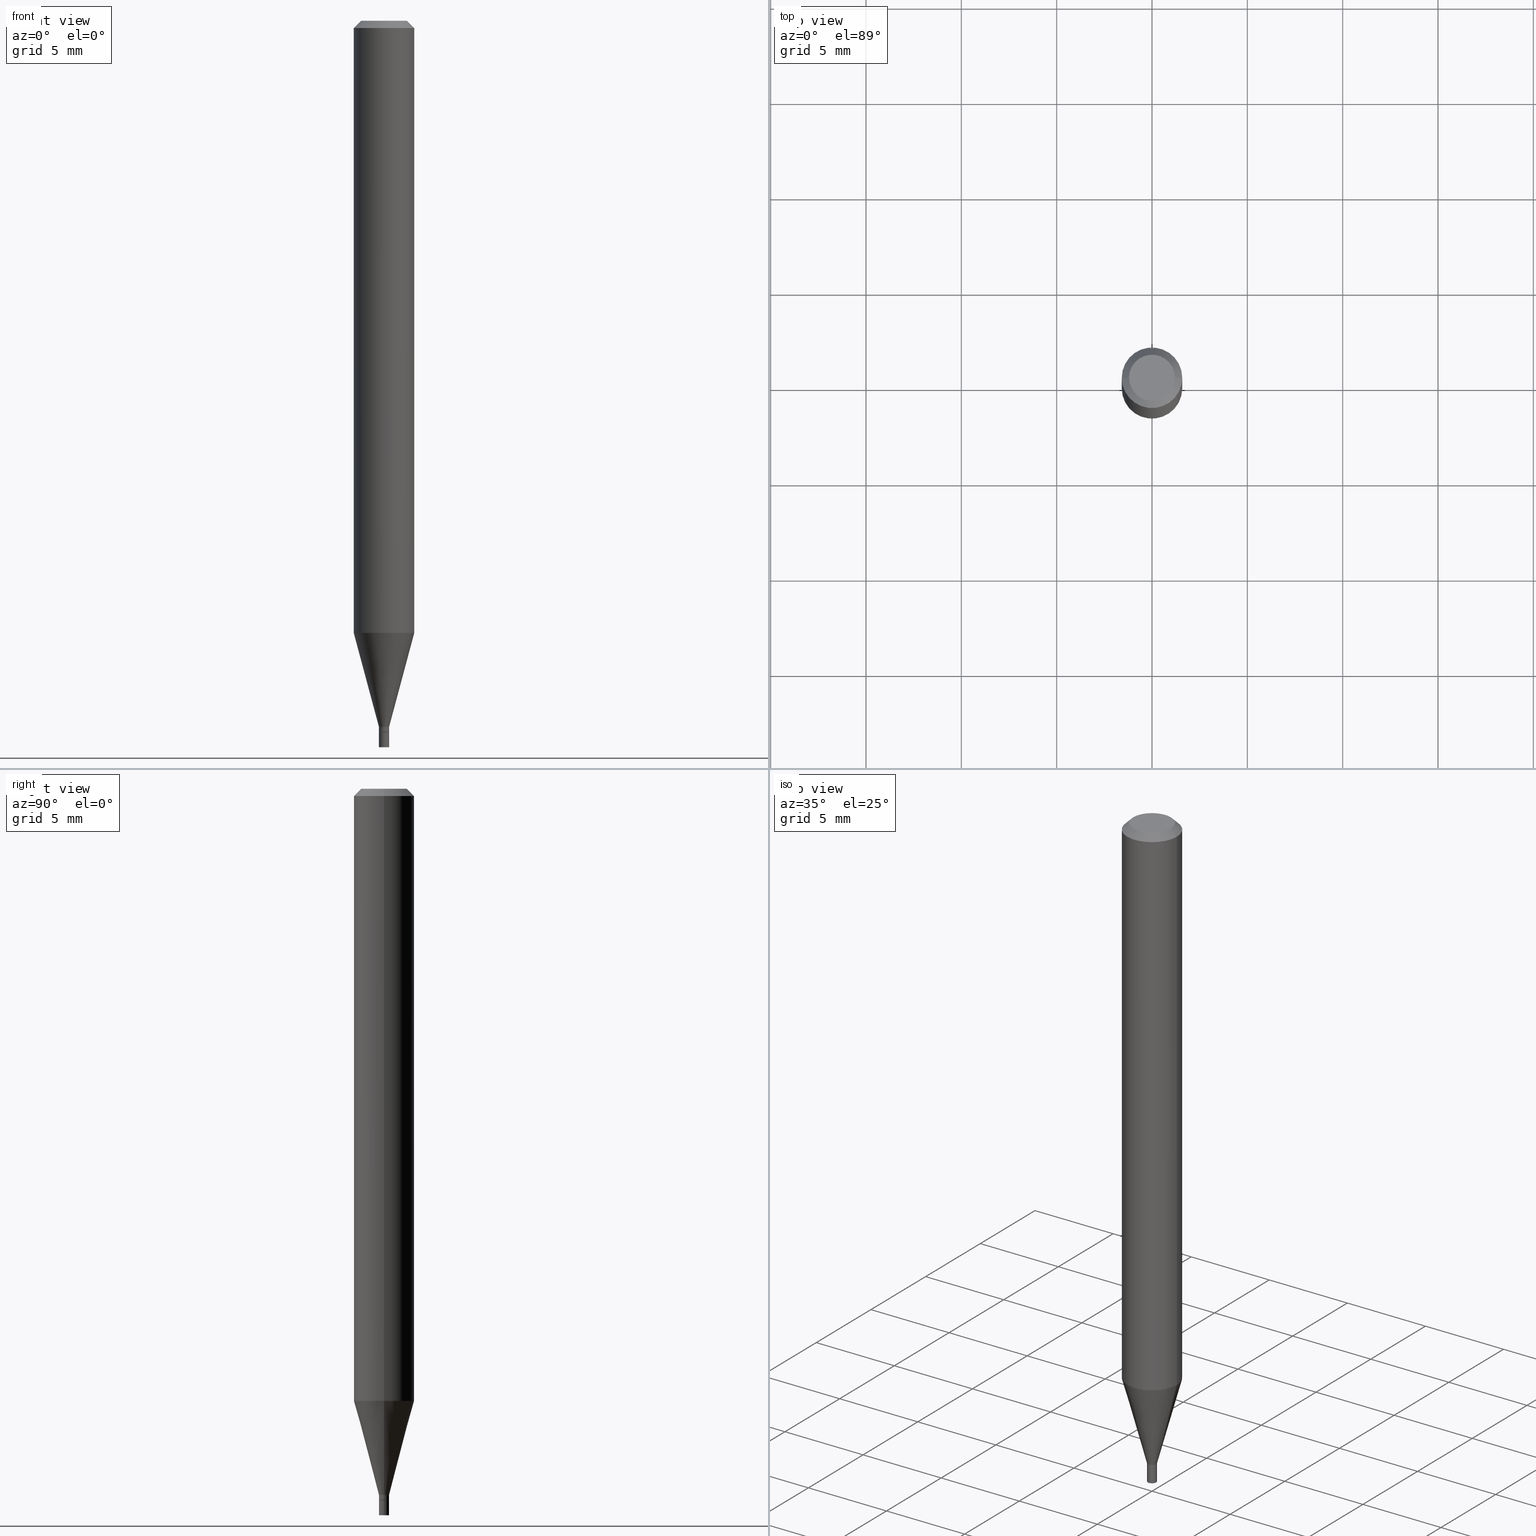
[diagram: canonical four-view strip — front | top / right | iso, engineering-drawing reading convention]
A machine part, canonical four-view strip (front | top / right | iso — engineering-drawing reading convention). The complete STEP part file that produces these views, byte-faithful:
ISO-10303-21;
HEADER;
FILE_DESCRIPTION (( 'STEP AP203' ),
    '1' );
FILE_NAME ('00388.STEP',
    '2024-03-19T21:07:34',
    ( '' ),
    ( '' ),
    'SwSTEP 2.0',
    'SolidWorks 2023',
    '' );
FILE_SCHEMA (( 'CONFIG_CONTROL_DESIGN' ));
ENDSEC;

DATA;
#1 = EDGE_CURVE ( 'NONE', #326, #166, #112, .T. ) ;
#2 = ORIENTED_EDGE ( 'NONE', *, *, #208, .T. ) ;
#3 = LINE ( 'NONE', #438, #330 ) ;
#4 = EDGE_CURVE ( 'NONE', #338, #343, #61, .T. ) ;
#5 = ORIENTED_EDGE ( 'NONE', *, *, #453, .F. ) ;
#6 = CIRCLE ( 'NONE', #132, 0.01050000000000000239 ) ;
#7 = AXIS2_PLACEMENT_3D ( 'NONE', #324, #396, #284 ) ;
#8 = ORIENTED_EDGE ( 'NONE', *, *, #328, .T. ) ;
#9 = APPROVAL_PERSON_ORGANIZATION ( #366, #71, #35 ) ;
#10 = CARTESIAN_POINT ( 'NONE',  ( 0.06250000000000000000, -4.849434900376155208E-15, -1.263933358006418706 ) ) ;
#12 = ORIENTED_EDGE ( 'NONE', *, *, #328, .F. ) ;
#11 = COORDINATED_UNIVERSAL_TIME_OFFSET ( 5, 0, .BEHIND. ) ;
#13 = CARTESIAN_POINT ( 'NONE',  ( 3.316907271900976096E-16, 0.04749999999999999362, -3.263246605298391118E-16 ) ) ;
#14 = ORIENTED_EDGE ( 'NONE', *, *, #246, .F. ) ;
#15 = DIRECTION ( 'NONE',  ( -2.445468806185136877E-29, 3.491481338843145188E-15, 1.000000000000000000 ) ) ;
#16 = VERTEX_POINT ( 'NONE', #358 ) ;
#17 = DIRECTION ( 'NONE',  ( -2.445468806185136597E-29, 3.491481338843145583E-15, 1.000000000000000000 ) ) ;
#18 = VERTEX_POINT ( 'NONE', #429 ) ;
#19 = CARTESIAN_POINT ( 'NONE',  ( 0.000000000000000000, 0.000000000000000000, 0.000000000000000000 ) ) ;
#20 = CIRCLE ( 'NONE', #227, 0.06250000000000000000 ) ;
#21 = EDGE_LOOP ( 'NONE', ( #198, #248 ) ) ;
#22 = DIRECTION ( 'NONE',  ( 2.445468806185136597E-29, -3.491481338843145583E-15, -1.000000000000000000 ) ) ;
#23 = UNCERTAINTY_MEASURE_WITH_UNIT (LENGTH_MEASURE( 1.000000000000000082E-05 ), #201, 'distance_accuracy_value', 'NONE');
#24 = EDGE_CURVE ( 'NONE', #193, #128, #249, .T. ) ;
#25 = DIRECTION ( 'NONE',  ( 1.000000000000000000, -6.982962677686243834E-15, 0.000000000000000000 ) ) ;
#26 = AXIS2_PLACEMENT_3D ( 'NONE', #422, #268, #104 ) ;
#27 = ORIENTED_EDGE ( 'NONE', *, *, #320, .F. ) ;
#28 = CARTESIAN_POINT ( 'NONE',  ( -0.01000000000000000194, -5.054440331845727922E-15, -1.467999999999999972 ) ) ;
#29 = DIRECTION ( 'NONE',  ( -2.445468806185136597E-29, 3.491481338843145583E-15, 1.000000000000000000 ) ) ;
#30 = PERSON_AND_ORGANIZATION_ROLE ( 'creator' ) ;
#31 = PERSON ( 'UNSPECIFIED', 'UNSPECIFIED', 'UNSPECIFIED', ('UNSPECIFIED'), ('UNSPECIFIED'), ('UNSPECIFIED') ) ;
#32 = ADVANCED_FACE ( 'NONE', ( #175 ), #394, .T. ) ;
#33 = VECTOR ( 'NONE', #15, 39.37007874015748143 ) ;
#34 = VECTOR ( 'NONE', #164, 39.37007874015748143 ) ;
#35 = APPROVAL_ROLE ( '' ) ;
#36 = ADVANCED_FACE ( 'NONE', ( #355 ), #172, .T. ) ;
#37 = CARTESIAN_POINT ( 'NONE',  ( 0.000000000000000000, 0.000000000000000000, 0.000000000000000000 ) ) ;
#38 = ORIENTED_EDGE ( 'NONE', *, *, #238, .T. ) ;
#39 = CARTESIAN_POINT ( 'NONE',  ( 3.565493519417929750E-29, -5.090579792033306355E-15, -1.458000000000000185 ) ) ;
#40 = ORIENTED_EDGE ( 'NONE', *, *, #167, .F. ) ;
#41 = AXIS2_PLACEMENT_3D ( 'NONE', #283, #213, #44 ) ;
#42 = CC_DESIGN_APPROVAL ( #310, ( #323 ) ) ;
#43 = ORIENTED_EDGE ( 'NONE', *, *, #320, .T. ) ;
#44 = DIRECTION ( 'NONE',  ( 1.000000000000000000, -6.982962677686265922E-15, 4.876176775795935232E-29 ) ) ;
#45 = ORIENTED_EDGE ( 'NONE', *, *, #162, .F. ) ;
#46 = ORIENTED_EDGE ( 'NONE', *, *, #4, .F. ) ;
#47 = DIRECTION ( 'NONE',  ( 0.7071067811865642261, -2.468850131082431399E-15, 0.7071067811865309194 ) ) ;
#48 = DIRECTION ( 'NONE',  ( -2.445468806185136877E-29, 3.491481338843145188E-15, 1.000000000000000000 ) ) ;
#49 = VECTOR ( 'NONE', #91, 39.37007874015747433 ) ;
#51 = ORIENTED_EDGE ( 'NONE', *, *, #126, .F. ) ;
#50 = PERSON_AND_ORGANIZATION ( #31, #327 ) ;
#52 = MANIFOLD_SOLID_BREP ( 'Body-Move/Copy2[1]', #380 ) ;
#53 = DIRECTION ( 'NONE',  ( -2.445468806185136597E-29, 3.491481338843145583E-15, 1.000000000000000000 ) ) ;
#54 = MANIFOLD_SOLID_BREP ( 'Body-Move/Copy2[2]', #317 ) ;
#55 = DIRECTION ( 'NONE',  ( -2.445468806185136597E-29, 3.491481338843145583E-15, 1.000000000000000000 ) ) ;
#56 = ORIENTED_EDGE ( 'NONE', *, *, #241, .F. ) ;
#57 = EDGE_CURVE ( 'NONE', #166, #326, #242, .T. ) ;
#58 = DIRECTION ( 'NONE',  ( -2.445468806185136597E-29, 3.491481338843145583E-15, 1.000000000000000000 ) ) ;
#59 = EDGE_LOOP ( 'NONE', ( #229, #121 ) ) ;
#60 = EDGE_CURVE ( 'NONE', #83, #18, #225, .T. ) ;
#61 = CIRCLE ( 'NONE', #340, 0.01050000000000000239 ) ;
#62 = AXIS2_PLACEMENT_3D ( 'NONE', #428, #348, #214 ) ;
#63 = LENGTH_MEASURE_WITH_UNIT ( LENGTH_MEASURE( 0.02539999999999999897 ), #135 );
#64 = DIRECTION ( 'NONE',  ( 1.000000000000000000, -6.982962677686266711E-15, 4.876176775795935793E-29 ) ) ;
#65 = ADVANCED_BREP_SHAPE_REPRESENTATION ( '00388', ( #52, #54, #139 ), #266 ) ;
#66 = CARTESIAN_POINT ( 'NONE',  ( 3.589948207479780735E-29, -5.125494605421738004E-15, -1.467999999999999972 ) ) ;
#67 = CYLINDRICAL_SURFACE ( 'NONE', #41, 0.01050000000000000239 ) ;
#68 = EDGE_LOOP ( 'NONE', ( #252, #259, #46, #228 ) ) ;
#69 = AXIS2_PLACEMENT_3D ( 'NONE', #373, #58, #202 ) ;
#70 = LOCAL_TIME ( 17, 7, 34.00000000000000000, #11 ) ;
#71 = APPROVAL ( #144, 'UNSPECIFIED' ) ;
#72 = PERSON_AND_ORGANIZATION_ROLE ( 'classification_officer' ) ;
#73 = DIRECTION ( 'NONE',  ( 0.2588190451025214611, 1.565188264969621573E-15, 0.9659258262890682012 ) ) ;
#74 = ADVANCED_FACE ( 'NONE', ( #177 ), #67, .T. ) ;
#75 = CARTESIAN_POINT ( 'NONE',  ( -0.01049999999999992432, -5.049141877497507098E-15, -1.467500000000000027 ) ) ;
#76 = AXIS2_PLACEMENT_3D ( 'NONE', #286, #79, #220 ) ;
#77 = CYLINDRICAL_SURFACE ( 'NONE', #405, 0.06250000000000000000 ) ;
#78 = ADVANCED_FACE ( 'NONE', ( #337 ), #89, .T. ) ;
#79 = DIRECTION ( 'NONE',  ( -2.445468806185136597E-29, 3.491481338843145583E-15, 1.000000000000000000 ) ) ;
#80 = ORIENTED_EDGE ( 'NONE', *, *, #246, .T. ) ;
#81 = APPLICATION_CONTEXT ( 'configuration controlled 3d designs of mechanical parts and assemblies' ) ;
#82 = FACE_OUTER_BOUND ( 'NONE', #307, .T. ) ;
#83 = VERTEX_POINT ( 'NONE', #75 ) ;
#84 = DIRECTION ( 'NONE',  ( 1.000000000000000000, -6.982962677686243834E-15, 0.000000000000000000 ) ) ;
#85 = AXIS2_PLACEMENT_3D ( 'NONE', #361, #105, #25 ) ;
#86 = ADVANCED_FACE ( 'NONE', ( #179 ), #329, .F. ) ;
#87 = ORIENTED_EDGE ( 'NONE', *, *, #424, .T. ) ;
#88 = EDGE_LOOP ( 'NONE', ( #333, #410, #125, #463 ) ) ;
#89 = CYLINDRICAL_SURFACE ( 'NONE', #265, 0.01049999999999992432 ) ;
#90 = VERTEX_POINT ( 'NONE', #141 ) ;
#91 = DIRECTION ( 'NONE',  ( -0.2588190451025214611, 5.211531920934551042E-15, 0.9659258262890682012 ) ) ;
#92 = CARTESIAN_POINT ( 'NONE',  ( -0.01050000000000000239, -5.106751319588416716E-15, -1.500000000000000222 ) ) ;
#93 = CARTESIAN_POINT ( 'NONE',  ( 3.565493519417929750E-29, -5.090579792033306355E-15, -1.458000000000000185 ) ) ;
#94 = CC_DESIGN_PERSON_AND_ORGANIZATION_ASSIGNMENT ( #183, #399, ( #157 ) ) ;
#95 = DIRECTION ( 'NONE',  ( -2.445468806185136597E-29, 3.491481338843145583E-15, 1.000000000000000000 ) ) ;
#96 = DIRECTION ( 'NONE',  ( -1.000000000000000000, 6.982962677686266711E-15, 0.000000000000000000 ) ) ;
#97 = CIRCLE ( 'NONE', #26, 0.06250000000000000000 ) ;
#98 = PLANE ( 'NONE',  #148 ) ;
#99 = CARTESIAN_POINT ( 'NONE',  ( -0.04749999999999999362, 3.578768372314205575E-16, -3.209585938695818960E-16 ) ) ;
#100 = CARTESIAN_POINT ( 'NONE',  ( 3.589948207479780735E-29, -5.125494605421738004E-15, -1.467999999999999972 ) ) ;
#101 = APPLICATION_PROTOCOL_DEFINITION ( 'international standard', 'config_control_design', 1994, #115 ) ;
#102 = EDGE_CURVE ( 'NONE', #166, #83, #210, .T. ) ;
#103 = CARTESIAN_POINT ( 'NONE',  ( -0.01000000000000000194, -5.051791104671617510E-15, -1.467999999999999972 ) ) ;
#104 = DIRECTION ( 'NONE',  ( 1.000000000000000000, -6.982962677686262766E-15, 0.000000000000000000 ) ) ;
#105 = DIRECTION ( 'NONE',  ( -2.445468806185136597E-29, 3.491481338843145583E-15, 1.000000000000000000 ) ) ;
#106 = CC_DESIGN_APPROVAL ( #173, ( #157 ) ) ;
#107 = DATE_AND_TIME ( #392, #275 ) ;
#108 = CARTESIAN_POINT ( 'NONE',  ( 0.000000000000000000, 0.000000000000000000, 0.000000000000000000 ) ) ;
#109 = FACE_OUTER_BOUND ( 'NONE', #219, .T. ) ;
#110 = DIRECTION ( 'NONE',  ( -2.445468806185136877E-29, 3.491481338843145188E-15, 1.000000000000000000 ) ) ;
#111 = ORIENTED_EDGE ( 'NONE', *, *, #24, .F. ) ;
#112 = CIRCLE ( 'NONE', #371, 0.01000000000000000194 ) ;
#113 = SECURITY_CLASSIFICATION_LEVEL ( 'unclassified' ) ;
#114 = EDGE_CURVE ( 'NONE', #168, #343, #321, .T. ) ;
#115 = APPLICATION_CONTEXT ( 'configuration controlled 3d designs of mechanical parts and assemblies' ) ;
#116 = DIRECTION ( 'NONE',  ( 1.000000000000000000, -6.982962677686265922E-15, 4.876176775795935793E-29 ) ) ;
#117 = AXIS2_PLACEMENT_3D ( 'NONE', #446, #122, #382 ) ;
#118 = ORIENTED_EDGE ( 'NONE', *, *, #336, .F. ) ;
#119 = AXIS2_PLACEMENT_3D ( 'NONE', #39, #444, #84 ) ;
#120 = EDGE_LOOP ( 'NONE', ( #305, #80, #51, #5 ) ) ;
#121 = ORIENTED_EDGE ( 'NONE', *, *, #57, .F. ) ;
#122 = DIRECTION ( 'NONE',  ( -2.445468806185136597E-29, 3.491481338843145583E-15, 1.000000000000000000 ) ) ;
#123 = ADVANCED_FACE ( 'NONE', ( #401 ), #301, .T. ) ;
#124 = CARTESIAN_POINT ( 'NONE',  ( 0.01050000000000000239, -7.332110811570581229E-17, 5.119985614585733248E-31 ) ) ;
#125 = ORIENTED_EDGE ( 'NONE', *, *, #332, .F. ) ;
#126 = EDGE_CURVE ( 'NONE', #16, #415, #460, .T. ) ;
#128 = VERTEX_POINT ( 'NONE', #99 ) ;
#127 = PERSON_AND_ORGANIZATION ( #31, #327 ) ;
#129 = FACE_OUTER_BOUND ( 'NONE', #160, .T. ) ;
#130 = CARTESIAN_POINT ( 'NONE',  ( -0.01049999999999992432, 7.460698725480998181E-17, -5.164881844767614889E-31 ) ) ;
#131 = ORIENTED_EDGE ( 'NONE', *, *, #208, .F. ) ;
#132 = AXIS2_PLACEMENT_3D ( 'NONE', #194, #152, #341 ) ;
#133 = DIRECTION ( 'NONE',  ( 0.000000000000000000, 0.000000000000000000, 1.000000000000000000 ) ) ;
#134 = LOCAL_TIME ( 17, 7, 34.00000000000000000, #385 ) ;
#135 =( LENGTH_UNIT ( ) NAMED_UNIT ( * ) SI_UNIT ( $, .METRE. ) );
#136 = CARTESIAN_POINT ( 'NONE',  ( 3.668203209277704895E-29, -5.237222008264718177E-15, -1.500000000000000222 ) ) ;
#137 = ORIENTED_EDGE ( 'NONE', *, *, #364, .F. ) ;
#138 = AXIS2_PLACEMENT_3D ( 'NONE', #37, #247, #294 ) ;
#139 = AXIS2_PLACEMENT_3D ( 'NONE', #452, #133, #269 ) ;
#140 = CARTESIAN_POINT ( 'NONE',  ( -0.01050000000000000239, 7.460698725481053648E-17, -5.164881844767652549E-31 ) ) ;
#141 = CARTESIAN_POINT ( 'NONE',  ( -0.06250000000000000000, -1.788596766701642890E-15, -0.01499999999999999944 ) ) ;
#142 = AXIS2_PLACEMENT_3D ( 'NONE', #288, #182, #116 ) ;
#143 = AXIS2_PLACEMENT_3D ( 'NONE', #136, #55, #270 ) ;
#144 = APPROVAL_STATUS ( 'not_yet_approved' ) ;
#145 = FACE_OUTER_BOUND ( 'NONE', #425, .T. ) ;
#146 = CARTESIAN_POINT ( 'NONE',  ( 3.565493519417929750E-29, -5.090579792033306355E-15, -1.458000000000000185 ) ) ;
#147 = ORIENTED_EDGE ( 'NONE', *, *, #57, .T. ) ;
#148 = AXIS2_PLACEMENT_3D ( 'NONE', #237, #235, #388 ) ;
#149 = LOCAL_TIME ( 17, 7, 34.00000000000000000, #176 ) ;
#150 = ORIENTED_EDGE ( 'NONE', *, *, #180, .F. ) ;
#151 = DIRECTION ( 'NONE',  ( -2.445468806185136597E-29, 3.491481338843145583E-15, 1.000000000000000000 ) ) ;
#152 = DIRECTION ( 'NONE',  ( -2.445468806185136597E-29, 3.491481338843145583E-15, 1.000000000000000000 ) ) ;
#153 = CC_DESIGN_PERSON_AND_ORGANIZATION_ASSIGNMENT ( #50, #342, ( #323 ) ) ;
#154 = DIRECTION ( 'NONE',  ( -2.445468806185136597E-29, 3.491481338843145583E-15, 1.000000000000000000 ) ) ;
#155 = CONICAL_SURFACE ( 'NONE', #367, 0.06250000000000000000, 0.7853981633974590482 ) ;
#156 = CARTESIAN_POINT ( 'NONE',  ( 3.588725473076687933E-29, -5.123748864752316500E-15, -1.467500000000000027 ) ) ;
#157 = PRODUCT_DEFINITION_FORMATION_WITH_SPECIFIED_SOURCE ( 'ANY', '', #350, .NOT_KNOWN. ) ;
#158 = EDGE_LOOP ( 'NONE', ( #360, #87, #302, #263 ) ) ;
#160 = EDGE_LOOP ( 'NONE', ( #185, #38, #293, #12 ) ) ;
#159 =( NAMED_UNIT ( * ) PLANE_ANGLE_UNIT ( ) SI_UNIT ( $, .RADIAN. ) );
#161 = DIRECTION ( 'NONE',  ( 1.000000000000000000, -6.982962677686284854E-15, 0.000000000000000000 ) ) ;
#162 = EDGE_CURVE ( 'NONE', #18, #83, #432, .T. ) ;
#163 = AXIS2_PLACEMENT_3D ( 'NONE', #108, #395, #64 ) ;
#164 = DIRECTION ( 'NONE',  ( -2.445468806185136877E-29, 3.491481338843145188E-15, 1.000000000000000000 ) ) ;
#165 = LOCAL_TIME ( 17, 7, 34.00000000000000000, #403 ) ;
#166 = VERTEX_POINT ( 'NONE', #103 ) ;
#167 = EDGE_CURVE ( 'NONE', #326, #18, #200, .T. ) ;
#168 = VERTEX_POINT ( 'NONE', #92 ) ;
#169 = DIRECTION ( 'NONE',  ( 1.000000000000000000, -6.982962677686267499E-15, 4.852736867747366768E-29 ) ) ;
#170 = DIRECTION ( 'NONE',  ( -2.445468806185136597E-29, 3.491481338843145583E-15, 1.000000000000000000 ) ) ;
#171 = CIRCLE ( 'NONE', #117, 0.04749999999999999362 ) ;
#172 = CYLINDRICAL_SURFACE ( 'NONE', #181, 0.01049999999999992432 ) ;
#173 = APPROVAL ( #264, 'UNSPECIFIED' ) ;
#174 = DIRECTION ( 'NONE',  ( -0.7071067811865642261, 7.493145998870414114E-15, 0.7071067811865309194 ) ) ;
#175 = FACE_OUTER_BOUND ( 'NONE', #413, .T. ) ;
#176 = COORDINATED_UNIVERSAL_TIME_OFFSET ( 5, 0, .BEHIND. ) ;
#177 = FACE_OUTER_BOUND ( 'NONE', #68, .T. ) ;
#178 = FACE_OUTER_BOUND ( 'NONE', #88, .T. ) ;
#179 = FACE_OUTER_BOUND ( 'NONE', #59, .T. ) ;
#180 = EDGE_CURVE ( 'NONE', #335, #90, #383, .T. ) ;
#181 = AXIS2_PLACEMENT_3D ( 'NONE', #319, #464, #402 ) ;
#182 = DIRECTION ( 'NONE',  ( -2.438088387897960049E-29, 3.491481338843145188E-15, 1.000000000000000000 ) ) ;
#183 = PERSON_AND_ORGANIZATION ( #31, #327 ) ;
#184 = ORIENTED_EDGE ( 'NONE', *, *, #287, .T. ) ;
#185 = ORIENTED_EDGE ( 'NONE', *, *, #126, .T. ) ;
#186 = DIRECTION ( 'NONE',  ( 1.000000000000000000, -6.982962677686266711E-15, 0.000000000000000000 ) ) ;
#187 = CARTESIAN_POINT ( 'NONE',  ( 0.000000000000000000, 0.000000000000000000, 0.000000000000000000 ) ) ;
#188 = EDGE_CURVE ( 'NONE', #343, #338, #298, .T. ) ;
#189 = VERTEX_POINT ( 'NONE', #314 ) ;
#190 = ORIENTED_EDGE ( 'NONE', *, *, #24, .T. ) ;
#191 = ADVANCED_FACE ( 'NONE', ( #109 ), #253, .T. ) ;
#192 = LINE ( 'NONE', #124, #419 ) ;
#193 = VERTEX_POINT ( 'NONE', #414 ) ;
#194 = CARTESIAN_POINT ( 'NONE',  ( 3.668203209277704895E-29, -5.237222008264718177E-15, -1.500000000000000222 ) ) ;
#195 = SECURITY_CLASSIFICATION ( '', '', #113 ) ;
#196 = CARTESIAN_POINT ( 'NONE',  ( 3.589948207479780735E-29, -5.125494605421738004E-15, -1.467999999999999972 ) ) ;
#198 = ORIENTED_EDGE ( 'NONE', *, *, #4, .T. ) ;
#197 = PERSON_AND_ORGANIZATION ( #31, #327 ) ;
#199 = FACE_OUTER_BOUND ( 'NONE', #21, .T. ) ;
#200 = LINE ( 'NONE', #375, #356 ) ;
#201 =( CONVERSION_BASED_UNIT ( 'INCH', #63 ) LENGTH_UNIT ( ) NAMED_UNIT ( #217 ) );
#202 = DIRECTION ( 'NONE',  ( 1.000000000000000000, -6.982962677686235156E-15, 0.000000000000000000 ) ) ;
#203 = DIRECTION ( 'NONE',  ( -2.445468806185136597E-29, 3.491481338843145583E-15, 1.000000000000000000 ) ) ;
#204 = CIRCLE ( 'NONE', #232, 0.06250000000000000000 ) ;
#205 = APPROVAL_PERSON_ORGANIZATION ( #276, #310, #459 ) ;
#206 = DIRECTION ( 'NONE',  ( -2.445468806185136597E-29, 3.491481338843145583E-15, 1.000000000000000000 ) ) ;
#207 = FACE_OUTER_BOUND ( 'NONE', #369, .T. ) ;
#208 = EDGE_CURVE ( 'NONE', #128, #193, #171, .T. ) ;
#209 = CARTESIAN_POINT ( 'NONE',  ( 3.668203209277705088E-31, -5.237222008264718399E-17, -0.01499999999999999944 ) ) ;
#210 = LINE ( 'NONE', #28, #411 ) ;
#211 = DATE_TIME_ROLE ( 'classification_date' ) ;
#212 = CONICAL_SURFACE ( 'NONE', #119, 0.01049999999999992432, 0.2617993877991501295 ) ;
#213 = DIRECTION ( 'NONE',  ( -2.445468806185136597E-29, 3.491481338843145583E-15, 1.000000000000000000 ) ) ;
#214 = DIRECTION ( 'NONE',  ( 1.000000000000000000, -6.982962677686243834E-15, 0.000000000000000000 ) ) ;
#215 = CARTESIAN_POINT ( 'NONE',  ( 3.668203209277705088E-31, -5.237222008264718399E-17, -0.01499999999999999944 ) ) ;
#216 = PERSON_AND_ORGANIZATION ( #31, #327 ) ;
#217 = DIMENSIONAL_EXPONENTS ( 1.000000000000000000, 0.000000000000000000, 0.000000000000000000, 0.000000000000000000, 0.000000000000000000, 0.000000000000000000, 0.000000000000000000 ) ;
#218 = CC_DESIGN_APPROVAL ( #71, ( #195 ) ) ;
#219 = EDGE_LOOP ( 'NONE', ( #416, #147, #447, #374 ) ) ;
#220 = DIRECTION ( 'NONE',  ( 1.000000000000000000, -6.982962677686235156E-15, 0.000000000000000000 ) ) ;
#221 = DIRECTION ( 'NONE',  ( 2.445468806185136597E-29, -3.491481338843145583E-15, -1.000000000000000000 ) ) ;
#222 = PLANE ( 'NONE',  #142 ) ;
#223 = VERTEX_POINT ( 'NONE', #10 ) ;
#224 = LINE ( 'NONE', #260, #390 ) ;
#225 = CIRCLE ( 'NONE', #85, 0.01049999999999992432 ) ;
#226 = CARTESIAN_POINT ( 'NONE',  ( -0.01049999999999992432, -5.015972804778496164E-15, -1.458000000000000185 ) ) ;
#227 = AXIS2_PLACEMENT_3D ( 'NONE', #231, #53, #309 ) ;
#228 = ORIENTED_EDGE ( 'NONE', *, *, #365, .F. ) ;
#229 = ORIENTED_EDGE ( 'NONE', *, *, #1, .F. ) ;
#230 = ORIENTED_EDGE ( 'NONE', *, *, #424, .F. ) ;
#231 = CARTESIAN_POINT ( 'NONE',  ( 3.090909600101528156E-29, -4.412999733020764327E-15, -1.263933358006418706 ) ) ;
#232 = AXIS2_PLACEMENT_3D ( 'NONE', #215, #334, #296 ) ;
#233 = DIRECTION ( 'NONE',  ( 1.000000000000000000, -6.982962677686235156E-15, 0.000000000000000000 ) ) ;
#234 = APPROVAL_ROLE ( '' ) ;
#235 = DIRECTION ( 'NONE',  ( 2.438088387897960049E-29, -3.491481338843145188E-15, -1.000000000000000000 ) ) ;
#236 = CARTESIAN_POINT ( 'NONE',  ( 3.589948207479780735E-29, -5.125494605421738004E-15, -1.467999999999999972 ) ) ;
#237 = CARTESIAN_POINT ( 'NONE',  ( 7.332110811574169314E-17, 0.01049999999999487454, -1.467999999999999972 ) ) ;
#238 = EDGE_CURVE ( 'NONE', #415, #335, #442, .T. ) ;
#239 = CARTESIAN_POINT ( 'NONE',  ( -0.01050000000000000239, -5.106751319588416716E-15, -1.467999999999999972 ) ) ;
#240 = LINE ( 'NONE', #462, #381 ) ;
#241 = EDGE_CURVE ( 'NONE', #335, #223, #20, .T. ) ;
#242 = CIRCLE ( 'NONE', #76, 0.01000000000000000194 ) ;
#243 = COORDINATED_UNIVERSAL_TIME_OFFSET ( 5, 0, .BEHIND. ) ;
#244 = ORIENTED_EDGE ( 'NONE', *, *, #102, .T. ) ;
#245 = SHAPE_DEFINITION_REPRESENTATION ( #272, #65 ) ;
#246 = EDGE_CURVE ( 'NONE', #83, #415, #451, .T. ) ;
#247 = DIRECTION ( 'NONE',  ( -2.445468806185136597E-29, 3.491481338843145583E-15, 1.000000000000000000 ) ) ;
#248 = ORIENTED_EDGE ( 'NONE', *, *, #188, .T. ) ;
#249 = CIRCLE ( 'NONE', #312, 0.04749999999999999362 ) ;
#250 = CALENDAR_DATE ( 2024, 19, 3 ) ;
#251 = ADVANCED_FACE ( 'NONE', ( #386 ), #347, .T. ) ;
#252 = ORIENTED_EDGE ( 'NONE', *, *, #376, .T. ) ;
#253 = CONICAL_SURFACE ( 'NONE', #431, 0.01000000000000000194, 0.7853981633974718157 ) ;
#254 = EDGE_LOOP ( 'NONE', ( #118, #131, #450, #404 ) ) ;
#255 = VERTEX_POINT ( 'NONE', #297 ) ;
#256 = DIRECTION ( 'NONE',  ( -2.445468806185136877E-29, 3.491481338843145188E-15, 1.000000000000000000 ) ) ;
#257 = ADVANCED_FACE ( 'NONE', ( #207 ), #393, .F. ) ;
#258 = AXIS2_PLACEMENT_3D ( 'NONE', #13, #441, #417 ) ;
#259 = ORIENTED_EDGE ( 'NONE', *, *, #114, .T. ) ;
#260 = CARTESIAN_POINT ( 'NONE',  ( -0.06250000000000000000, 3.840629472727444916E-16, -0.01499999999999999944 ) ) ;
#261 = CC_DESIGN_DATE_AND_TIME_ASSIGNMENT ( #418, #449, ( #323 ) ) ;
#262 = EDGE_LOOP ( 'NONE', ( #408, #43, #8, #56 ) ) ;
#263 = ORIENTED_EDGE ( 'NONE', *, *, #188, .F. ) ;
#264 = APPROVAL_STATUS ( 'not_yet_approved' ) ;
#265 = AXIS2_PLACEMENT_3D ( 'NONE', #187, #151, #278 ) ;
#266 =( GEOMETRIC_REPRESENTATION_CONTEXT ( 3 ) GLOBAL_UNCERTAINTY_ASSIGNED_CONTEXT ( ( #23 ) ) GLOBAL_UNIT_ASSIGNED_CONTEXT ( ( #201, #159, #353 ) ) REPRESENTATION_CONTEXT ( 'NONE', 'WORKASPACE' ) );
#267 = ADVANCED_FACE ( 'NONE', ( #199 ), #98, .F. ) ;
#268 = DIRECTION ( 'NONE',  ( -2.445468806185136597E-29, 3.491481338843145583E-15, 1.000000000000000000 ) ) ;
#269 = DIRECTION ( 'NONE',  ( 1.000000000000000000, 0.000000000000000000, 0.000000000000000000 ) ) ;
#270 = DIRECTION ( 'NONE',  ( 1.000000000000000000, -6.982962677686284854E-15, 0.000000000000000000 ) ) ;
#271 = PRODUCT_RELATED_PRODUCT_CATEGORY ( 'detail', '', ( #350 ) ) ;
#272 = PRODUCT_DEFINITION_SHAPE ( 'NONE', 'NONE',  #323 ) ;
#273 = FACE_OUTER_BOUND ( 'NONE', #262, .T. ) ;
#274 = AXIS2_PLACEMENT_3D ( 'NONE', #146, #331, #292 ) ;
#275 = LOCAL_TIME ( 17, 7, 34.00000000000000000, #243 ) ;
#276 = PERSON_AND_ORGANIZATION ( #31, #327 ) ;
#277 = ORIENTED_EDGE ( 'NONE', *, *, #407, .F. ) ;
#278 = DIRECTION ( 'NONE',  ( 1.000000000000000000, -6.982962677686267499E-15, 4.876176775795935793E-29 ) ) ;
#279 = VECTOR ( 'NONE', #420, 39.37007874015748143 ) ;
#280 = ADVANCED_FACE ( 'NONE', ( #145 ), #155, .T. ) ;
#281 = CIRCLE ( 'NONE', #143, 0.01050000000000000239 ) ;
#282 = CALENDAR_DATE ( 2024, 19, 3 ) ;
#283 = CARTESIAN_POINT ( 'NONE',  ( 0.000000000000000000, 0.000000000000000000, 0.000000000000000000 ) ) ;
#284 = DIRECTION ( 'NONE',  ( 1.000000000000000000, -6.982962677686265922E-15, 4.876176775795935793E-29 ) ) ;
#285 = DATE_AND_TIME ( #250, #165 ) ;
#286 = CARTESIAN_POINT ( 'NONE',  ( 3.589948207479780735E-29, -5.125494605421738004E-15, -1.467999999999999972 ) ) ;
#287 = EDGE_CURVE ( 'NONE', #223, #189, #3, .T. ) ;
#288 = CARTESIAN_POINT ( 'NONE',  ( 3.576687321579069994E-29, -5.368277968210015545E-15, -1.500000000000000222 ) ) ;
#289 = ORIENTED_EDGE ( 'NONE', *, *, #241, .T. ) ;
#290 = CONICAL_SURFACE ( 'NONE', #62, 0.01049999999999992432, 0.2617993877991501295 ) ;
#291 = CONICAL_SURFACE ( 'NONE', #300, 0.06250000000000000000, 0.7853981633974590482 ) ;
#292 = DIRECTION ( 'NONE',  ( 1.000000000000000000, -6.982962677686243834E-15, 0.000000000000000000 ) ) ;
#293 = ORIENTED_EDGE ( 'NONE', *, *, #457, .F. ) ;
#294 = DIRECTION ( 'NONE',  ( 1.000000000000000000, -6.982962677686265922E-15, 4.876176775795935232E-29 ) ) ;
#295 = DESIGN_CONTEXT ( 'detailed design', #81, 'design' ) ;
#296 = DIRECTION ( 'NONE',  ( 1.000000000000000000, -6.982962677686266711E-15, 0.000000000000000000 ) ) ;
#297 = CARTESIAN_POINT ( 'NONE',  ( 0.01050000000000000239, -5.310543116380424482E-15, -1.500000000000000222 ) ) ;
#298 = CIRCLE ( 'NONE', #372, 0.01050000000000000239 ) ;
#299 = DIRECTION ( 'NONE',  ( 1.000000000000000000, -6.982962677686235156E-15, 0.000000000000000000 ) ) ;
#300 = AXIS2_PLACEMENT_3D ( 'NONE', #209, #22, #96 ) ;
#301 = CYLINDRICAL_SURFACE ( 'NONE', #138, 0.01050000000000000239 ) ;
#302 = ORIENTED_EDGE ( 'NONE', *, *, #365, .T. ) ;
#303 = ORIENTED_EDGE ( 'NONE', *, *, #376, .F. ) ;
#304 = ADVANCED_FACE ( 'NONE', ( #82 ), #222, .F. ) ;
#305 = ORIENTED_EDGE ( 'NONE', *, *, #162, .T. ) ;
#307 = EDGE_LOOP ( 'NONE', ( #303, #230 ) ) ;
#306 = CALENDAR_DATE ( 2024, 19, 3 ) ;
#308 = CARTESIAN_POINT ( 'NONE',  ( 0.01050000000000000239, -5.198815713537444309E-15, -1.467999999999999972 ) ) ;
#309 = DIRECTION ( 'NONE',  ( 1.000000000000000000, -6.982962677686262766E-15, 0.000000000000000000 ) ) ;
#310 = APPROVAL ( #316, 'UNSPECIFIED' ) ;
#311 = LINE ( 'NONE', #349, #34 ) ;
#312 = AXIS2_PLACEMENT_3D ( 'NONE', #461, #29, #169 ) ;
#313 = EDGE_LOOP ( 'NONE', ( #14, #339, #435, #27 ) ) ;
#314 = CARTESIAN_POINT ( 'NONE',  ( 0.06250000000000000000, -4.888073874380388472E-16, -0.01499999999999999944 ) ) ;
#315 = DIRECTION ( 'NONE',  ( 1.000000000000000000, -6.982962677686266711E-15, 4.876176775795935793E-29 ) ) ;
#316 = APPROVAL_STATUS ( 'not_yet_approved' ) ;
#317 = CLOSED_SHELL ( 'NONE', ( #78, #251, #280, #409, #352, #362, #32, #412, #257, #86, #191, #36 ) ) ;
#318 = CALENDAR_DATE ( 2024, 19, 3 ) ;
#319 = CARTESIAN_POINT ( 'NONE',  ( 0.000000000000000000, 0.000000000000000000, 0.000000000000000000 ) ) ;
#320 = EDGE_CURVE ( 'NONE', #415, #16, #325, .T. ) ;
#321 = LINE ( 'NONE', #140, #455 ) ;
#322 = DATE_AND_TIME ( #282, #149 ) ;
#323 = PRODUCT_DEFINITION ( 'UNKNOWN', '', #157, #295 ) ;
#324 = CARTESIAN_POINT ( 'NONE',  ( 3.589948207479780735E-29, -5.125494605421738004E-15, -1.467999999999999972 ) ) ;
#325 = CIRCLE ( 'NONE', #274, 0.01049999999999992432 ) ;
#326 = VERTEX_POINT ( 'NONE', #400 ) ;
#327 = ORGANIZATION ( 'UNSPECIFIED', 'UNSPECIFIED', '' ) ;
#328 = EDGE_CURVE ( 'NONE', #16, #223, #240, .T. ) ;
#329 = PLANE ( 'NONE',  #7 ) ;
#330 = VECTOR ( 'NONE', #256, 39.37007874015748143 ) ;
#331 = DIRECTION ( 'NONE',  ( -2.445468806185136597E-29, 3.491481338843145583E-15, 1.000000000000000000 ) ) ;
#332 = EDGE_CURVE ( 'NONE', #189, #90, #204, .T. ) ;
#333 = ORIENTED_EDGE ( 'NONE', *, *, #457, .T. ) ;
#334 = DIRECTION ( 'NONE',  ( -2.445468806185136597E-29, 3.491481338843145583E-15, 1.000000000000000000 ) ) ;
#335 = VERTEX_POINT ( 'NONE', #454 ) ;
#336 = EDGE_CURVE ( 'NONE', #193, #189, #379, .T. ) ;
#337 = FACE_OUTER_BOUND ( 'NONE', #120, .T. ) ;
#338 = VERTEX_POINT ( 'NONE', #308 ) ;
#339 = ORIENTED_EDGE ( 'NONE', *, *, #60, .T. ) ;
#340 = AXIS2_PLACEMENT_3D ( 'NONE', #100, #170, #426 ) ;
#341 = DIRECTION ( 'NONE',  ( 1.000000000000000000, -6.982962677686284854E-15, 0.000000000000000000 ) ) ;
#343 = VERTEX_POINT ( 'NONE', #239 ) ;
#342 = PERSON_AND_ORGANIZATION_ROLE ( 'creator' ) ;
#344 = CC_DESIGN_PERSON_AND_ORGANIZATION_ASSIGNMENT ( #197, #427, ( #350 ) ) ;
#345 = FACE_OUTER_BOUND ( 'NONE', #254, .T. ) ;
#346 = CARTESIAN_POINT ( 'NONE',  ( -0.06250000000000000000, 4.440892098500626162E-16, -3.074334431409316114E-30 ) ) ;
#347 = CONICAL_SURFACE ( 'NONE', #69, 0.01000000000000000194, 0.7853981633974718157 ) ;
#348 = DIRECTION ( 'NONE',  ( -2.445468806185136597E-29, 3.491481338843145583E-15, 1.000000000000000000 ) ) ;
#349 = CARTESIAN_POINT ( 'NONE',  ( 0.01049999999999992432, -7.332110811570528228E-17, 5.119985614585695588E-31 ) ) ;
#350 = PRODUCT ( '00388', '00388', '', ( #421 ) ) ;
#351 = DIRECTION ( 'NONE',  ( 1.000000000000000000, -6.982962677686243834E-15, 0.000000000000000000 ) ) ;
#352 = ADVANCED_FACE ( 'NONE', ( #129 ), #290, .T. ) ;
#353 =( NAMED_UNIT ( * ) SI_UNIT ( $, .STERADIAN. ) SOLID_ANGLE_UNIT ( ) );
#354 = DIRECTION ( 'NONE',  ( 0.7071067811865551223, -7.319954787623281289E-15, -0.7071067811865399122 ) ) ;
#355 = FACE_OUTER_BOUND ( 'NONE', #313, .T. ) ;
#356 = VECTOR ( 'NONE', #47, 39.37007874015748143 ) ;
#357 = APPROVAL_PERSON_ORGANIZATION ( #127, #173, #234 ) ;
#358 = CARTESIAN_POINT ( 'NONE',  ( 0.01049999999999992432, -5.163900900149011871E-15, -1.458000000000000185 ) ) ;
#359 = APPROVAL_DATE_TIME ( #434, #173 ) ;
#360 = ORIENTED_EDGE ( 'NONE', *, *, #114, .F. ) ;
#361 = CARTESIAN_POINT ( 'NONE',  ( 3.588725473076687933E-29, -5.123748864752316500E-15, -1.467500000000000027 ) ) ;
#362 = ADVANCED_FACE ( 'NONE', ( #273 ), #212, .T. ) ;
#363 = APPROVAL_DATE_TIME ( #322, #71 ) ;
#364 = EDGE_CURVE ( 'NONE', #128, #90, #224, .T. ) ;
#365 = EDGE_CURVE ( 'NONE', #255, #338, #192, .T. ) ;
#366 = PERSON_AND_ORGANIZATION ( #31, #327 ) ;
#367 = AXIS2_PLACEMENT_3D ( 'NONE', #406, #221, #368 ) ;
#368 = DIRECTION ( 'NONE',  ( -1.000000000000000000, 6.982962677686266711E-15, 0.000000000000000000 ) ) ;
#369 = EDGE_LOOP ( 'NONE', ( #2, #190 ) ) ;
#370 = DIRECTION ( 'NONE',  ( -2.445468806185136597E-29, 3.491481338843145583E-15, 1.000000000000000000 ) ) ;
#371 = AXIS2_PLACEMENT_3D ( 'NONE', #196, #95, #233 ) ;
#372 = AXIS2_PLACEMENT_3D ( 'NONE', #236, #17, #161 ) ;
#373 = CARTESIAN_POINT ( 'NONE',  ( 3.589948207479780735E-29, -5.125494605421738004E-15, -1.467999999999999972 ) ) ;
#374 = ORIENTED_EDGE ( 'NONE', *, *, #60, .F. ) ;
#375 = CARTESIAN_POINT ( 'NONE',  ( 0.01000000000000000194, -5.195324232198600513E-15, -1.467999999999999972 ) ) ;
#376 = EDGE_CURVE ( 'NONE', #255, #168, #6, .T. ) ;
#378 = EDGE_LOOP ( 'NONE', ( #430, #244, #45, #40 ) ) ;
#377 = APPROVAL_DATE_TIME ( #107, #310 ) ;
#379 = LINE ( 'NONE', #387, #465 ) ;
#380 = CLOSED_SHELL ( 'NONE', ( #74, #304, #123, #267 ) ) ;
#381 = VECTOR ( 'NONE', #73, 39.37007874015747433 ) ;
#382 = DIRECTION ( 'NONE',  ( 1.000000000000000000, -6.982962677686267499E-15, 4.852736867747366768E-29 ) ) ;
#383 = LINE ( 'NONE', #346, #33 ) ;
#384 = DIRECTION ( 'NONE',  ( -2.445468806185136597E-29, 3.491481338843145583E-15, 1.000000000000000000 ) ) ;
#385 = COORDINATED_UNIVERSAL_TIME_OFFSET ( 5, 0, .BEHIND. ) ;
#386 = FACE_OUTER_BOUND ( 'NONE', #378, .T. ) ;
#387 = CARTESIAN_POINT ( 'NONE',  ( 0.06250000000000000000, -4.811533449433679005E-16, -0.01499999999999999944 ) ) ;
#388 = DIRECTION ( 'NONE',  ( -1.000000000000000000, 6.982962677686265922E-15, -4.876176775795935793E-29 ) ) ;
#389 = APPLICATION_PROTOCOL_DEFINITION ( 'international standard', 'config_control_design', 1994, #81 ) ;
#390 = VECTOR ( 'NONE', #440, 39.37007874015748143 ) ;
#391 = CC_DESIGN_PERSON_AND_ORGANIZATION_ASSIGNMENT ( #216, #30, ( #157 ) ) ;
#392 = CALENDAR_DATE ( 2024, 19, 3 ) ;
#393 = PLANE ( 'NONE',  #258 ) ;
#394 = CYLINDRICAL_SURFACE ( 'NONE', #163, 0.06250000000000000000 ) ;
#395 = DIRECTION ( 'NONE',  ( -2.445468806185136597E-29, 3.491481338843145583E-15, 1.000000000000000000 ) ) ;
#396 = DIRECTION ( 'NONE',  ( -2.438088387897960049E-29, 3.491481338843145188E-15, 1.000000000000000000 ) ) ;
#397 = CC_DESIGN_PERSON_AND_ORGANIZATION_ASSIGNMENT ( #466, #72, ( #195 ) ) ;
#398 = CIRCLE ( 'NONE', #433, 0.06250000000000000000 ) ;
#399 = PERSON_AND_ORGANIZATION_ROLE ( 'design_supplier' ) ;
#400 = CARTESIAN_POINT ( 'NONE',  ( 0.01000000000000000194, -5.195324232198600513E-15, -1.467999999999999972 ) ) ;
#401 = FACE_OUTER_BOUND ( 'NONE', #158, .T. ) ;
#402 = DIRECTION ( 'NONE',  ( 1.000000000000000000, -6.982962677686267499E-15, 4.876176775795935793E-29 ) ) ;
#403 = COORDINATED_UNIVERSAL_TIME_OFFSET ( 5, 0, .BEHIND. ) ;
#404 = ORIENTED_EDGE ( 'NONE', *, *, #407, .T. ) ;
#405 = AXIS2_PLACEMENT_3D ( 'NONE', #19, #206, #315 ) ;
#406 = CARTESIAN_POINT ( 'NONE',  ( 3.668203209277705088E-31, -5.237222008264718399E-17, -0.01499999999999999944 ) ) ;
#407 = EDGE_CURVE ( 'NONE', #90, #189, #398, .T. ) ;
#408 = ORIENTED_EDGE ( 'NONE', *, *, #238, .F. ) ;
#409 = ADVANCED_FACE ( 'NONE', ( #178 ), #77, .T. ) ;
#410 = ORIENTED_EDGE ( 'NONE', *, *, #180, .T. ) ;
#411 = VECTOR ( 'NONE', #174, 39.37007874015748143 ) ;
#412 = ADVANCED_FACE ( 'NONE', ( #345 ), #291, .T. ) ;
#413 = EDGE_LOOP ( 'NONE', ( #150, #289, #184, #277 ) ) ;
#414 = CARTESIAN_POINT ( 'NONE',  ( 0.04749999999999999362, -4.035134999187584047E-16, -3.209585938695769163E-16 ) ) ;
#415 = VERTEX_POINT ( 'NONE', #458 ) ;
#416 = ORIENTED_EDGE ( 'NONE', *, *, #102, .F. ) ;
#417 = DIRECTION ( 'NONE',  ( -1.000000000000000000, 6.982962677686265922E-15, -4.876176775795935793E-29 ) ) ;
#418 = DATE_AND_TIME ( #306, #70 ) ;
#419 = VECTOR ( 'NONE', #48, 39.37007874015748143 ) ;
#420 = DIRECTION ( 'NONE',  ( -2.445468806185136877E-29, 3.491481338843145188E-15, 1.000000000000000000 ) ) ;
#421 = MECHANICAL_CONTEXT ( 'NONE', #115, 'mechanical' ) ;
#422 = CARTESIAN_POINT ( 'NONE',  ( 3.090909600101528156E-29, -4.412999733020764327E-15, -1.263933358006418706 ) ) ;
#423 = AXIS2_PLACEMENT_3D ( 'NONE', #156, #203, #448 ) ;
#424 = EDGE_CURVE ( 'NONE', #168, #255, #281, .T. ) ;
#425 = EDGE_LOOP ( 'NONE', ( #111, #456, #439, #137 ) ) ;
#426 = DIRECTION ( 'NONE',  ( 1.000000000000000000, -6.982962677686284854E-15, 0.000000000000000000 ) ) ;
#427 = PERSON_AND_ORGANIZATION_ROLE ( 'design_owner' ) ;
#428 = CARTESIAN_POINT ( 'NONE',  ( 3.565493519417929750E-29, -5.090579792033306355E-15, -1.458000000000000185 ) ) ;
#429 = CARTESIAN_POINT ( 'NONE',  ( 0.01049999999999992432, -5.197069972868022017E-15, -1.467500000000000027 ) ) ;
#430 = ORIENTED_EDGE ( 'NONE', *, *, #1, .T. ) ;
#431 = AXIS2_PLACEMENT_3D ( 'NONE', #66, #154, #299 ) ;
#432 = CIRCLE ( 'NONE', #423, 0.01049999999999992432 ) ;
#433 = AXIS2_PLACEMENT_3D ( 'NONE', #437, #370, #186 ) ;
#434 = DATE_AND_TIME ( #318, #134 ) ;
#435 = ORIENTED_EDGE ( 'NONE', *, *, #453, .T. ) ;
#436 = CC_DESIGN_SECURITY_CLASSIFICATION ( #195, ( #157 ) ) ;
#437 = CARTESIAN_POINT ( 'NONE',  ( 3.668203209277705088E-31, -5.237222008264718399E-17, -0.01499999999999999944 ) ) ;
#438 = CARTESIAN_POINT ( 'NONE',  ( 0.06250000000000000000, -4.364351673553916694E-16, 3.047610484872459871E-30 ) ) ;
#439 = ORIENTED_EDGE ( 'NONE', *, *, #332, .T. ) ;
#440 = DIRECTION ( 'NONE',  ( -0.7071067811865551223, 2.468850131082336736E-15, -0.7071067811865399122 ) ) ;
#441 = DIRECTION ( 'NONE',  ( 2.438088387897960049E-29, -3.491481338843145188E-15, -1.000000000000000000 ) ) ;
#442 = LINE ( 'NONE', #226, #49 ) ;
#443 = AXIS2_PLACEMENT_3D ( 'NONE', #93, #384, #351 ) ;
#444 = DIRECTION ( 'NONE',  ( -2.445468806185136597E-29, 3.491481338843145583E-15, 1.000000000000000000 ) ) ;
#445 = CC_DESIGN_DATE_AND_TIME_ASSIGNMENT ( #285, #211, ( #195 ) ) ;
#446 = CARTESIAN_POINT ( 'NONE',  ( 7.848942293851005666E-45, -1.120620941036972666E-30, -3.209585938695794308E-16 ) ) ;
#447 = ORIENTED_EDGE ( 'NONE', *, *, #167, .T. ) ;
#448 = DIRECTION ( 'NONE',  ( 1.000000000000000000, -6.982962677686243834E-15, 0.000000000000000000 ) ) ;
#450 = ORIENTED_EDGE ( 'NONE', *, *, #364, .T. ) ;
#449 = DATE_TIME_ROLE ( 'creation_date' ) ;
#451 = LINE ( 'NONE', #130, #279 ) ;
#452 = CARTESIAN_POINT ( 'NONE',  ( 0.000000000000000000, 0.000000000000000000, 0.000000000000000000 ) ) ;
#453 = EDGE_CURVE ( 'NONE', #18, #16, #311, .T. ) ;
#454 = CARTESIAN_POINT ( 'NONE',  ( -0.06250000000000000000, -3.968910523170700922E-15, -1.263933358006418706 ) ) ;
#455 = VECTOR ( 'NONE', #110, 39.37007874015748143 ) ;
#456 = ORIENTED_EDGE ( 'NONE', *, *, #336, .T. ) ;
#457 = EDGE_CURVE ( 'NONE', #223, #335, #97, .T. ) ;
#458 = CARTESIAN_POINT ( 'NONE',  ( -0.01049999999999992432, -4.492441663974599726E-15, -1.458000000000000185 ) ) ;
#459 = APPROVAL_ROLE ( '' ) ;
#460 = CIRCLE ( 'NONE', #443, 0.01049999999999992432 ) ;
#461 = CARTESIAN_POINT ( 'NONE',  ( 7.848942293851005666E-45, -1.120620941036972666E-30, -3.209585938695794308E-16 ) ) ;
#462 = CARTESIAN_POINT ( 'NONE',  ( 0.01049999999999992432, -5.163900900149011871E-15, -1.458000000000000185 ) ) ;
#463 = ORIENTED_EDGE ( 'NONE', *, *, #287, .F. ) ;
#464 = DIRECTION ( 'NONE',  ( -2.445468806185136597E-29, 3.491481338843145583E-15, 1.000000000000000000 ) ) ;
#465 = VECTOR ( 'NONE', #354, 39.37007874015748143 ) ;
#466 = PERSON_AND_ORGANIZATION ( #31, #327 ) ;
ENDSEC;
END-ISO-10303-21;
